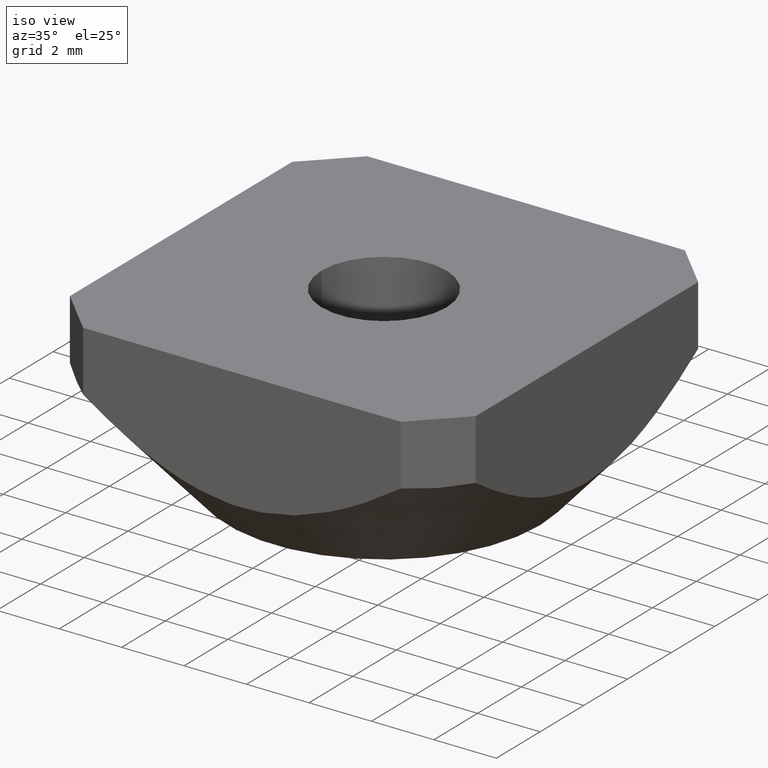
[diagram: clean part render]
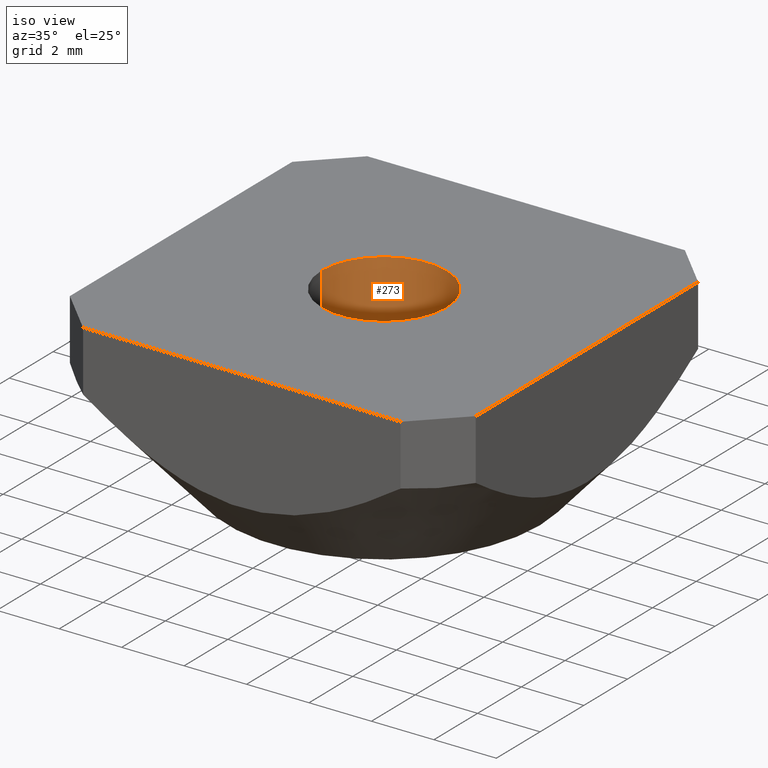
[diagram: same view with one face highlighted and labeled with its STEP entity id]
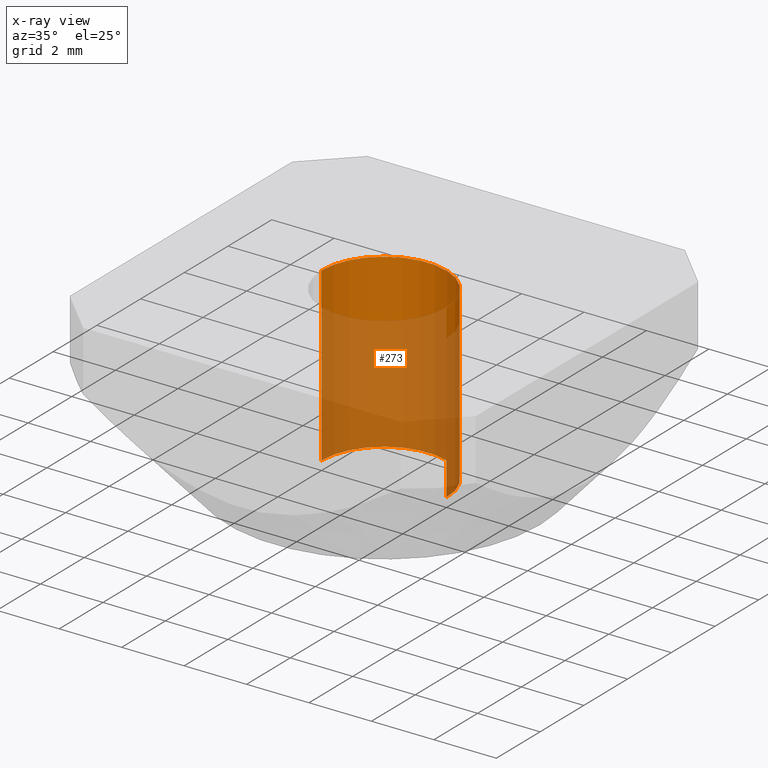
[diagram: x-ray of the same camera — body ghosted, the highlighted face saturated]
A machine part, iso view. The second image highlights one B-rep face of the part: STEP entity #273.
The next image is the same camera in x-ray: the body ghosted, the highlighted face saturated — about 71% of this face is hidden behind the body in this view.
In plain terms, the highlighted cylindrical surface (partial cylindrical patch) has radius 2 mm, axis along (0, 0, -1).
Its self-contained STEP definition (entity closure, byte-faithful):
#43 = DIRECTION ( 'NONE',  ( 0.0000000000000000000, 0.0000000000000000000, -1.000000000000000000 ) ) ;
#45 = AXIS2_PLACEMENT_3D ( 'NONE', #154, #290, #471 ) ;
#69 = VERTEX_POINT ( 'NONE', #449 ) ;
#116 = DIRECTION ( 'NONE',  ( -1.000000000000000000, 0.0000000000000000000, 0.0000000000000000000 ) ) ;
#133 = VECTOR ( 'NONE', #326, 1000.000000000000000 ) ;
#149 = DIRECTION ( 'NONE',  ( -1.000000000000000000, 0.0000000000000000000, 0.0000000000000000000 ) ) ;
#154 = CARTESIAN_POINT ( 'NONE',  ( 0.0000000000000000000, 0.0000000000000000000, -5.500000000000000000 ) ) ;
#158 = DIRECTION ( 'NONE',  ( 0.0000000000000000000, 0.0000000000000000000, -1.000000000000000000 ) ) ;
#171 = EDGE_CURVE ( 'NONE', #69, #395, #494, .T. ) ;
#205 = CIRCLE ( 'NONE', #427, 2.000000000000000000 ) ;
#211 = VECTOR ( 'NONE', #158, 1000.000000000000000 ) ;
#219 = EDGE_CURVE ( 'NONE', #503, #407, #355, .T. ) ;
#222 = EDGE_LOOP ( 'NONE', ( #310, #505, #392, #368 ) ) ;
#233 = CARTESIAN_POINT ( 'NONE',  ( -2.000000000000000000, 0.0000000000000000000, 0.0000000000000000000 ) ) ;
#248 = CARTESIAN_POINT ( 'NONE',  ( 0.0000000000000000000, 0.0000000000000000000, 0.0000000000000000000 ) ) ;
#261 = EDGE_CURVE ( 'NONE', #407, #395, #489, .T. ) ;
#273 = ADVANCED_FACE ( 'NONE', ( #455 ), #546, .F. ) ;
#282 = CARTESIAN_POINT ( 'NONE',  ( 0.0000000000000000000, 0.0000000000000000000, 0.0000000000000000000 ) ) ;
#290 = DIRECTION ( 'NONE',  ( -0.0000000000000000000, -0.0000000000000000000, 1.000000000000000000 ) ) ;
#310 = ORIENTED_EDGE ( 'NONE', *, *, #219, .F. ) ;
#326 = DIRECTION ( 'NONE',  ( 0.0000000000000000000, 0.0000000000000000000, -1.000000000000000000 ) ) ;
#329 = CARTESIAN_POINT ( 'NONE',  ( -2.000000000000000000, 0.0000000000000000000, -5.500000000000000000 ) ) ;
#355 = LINE ( 'NONE', #512, #211 ) ;
#368 = ORIENTED_EDGE ( 'NONE', *, *, #261, .F. ) ;
#380 = DIRECTION ( 'NONE',  ( 0.0000000000000000000, 0.0000000000000000000, -1.000000000000000000 ) ) ;
#392 = ORIENTED_EDGE ( 'NONE', *, *, #171, .T. ) ;
#395 = VERTEX_POINT ( 'NONE', #329 ) ;
#407 = VERTEX_POINT ( 'NONE', #466 ) ;
#408 = AXIS2_PLACEMENT_3D ( 'NONE', #282, #380, #149 ) ;
#427 = AXIS2_PLACEMENT_3D ( 'NONE', #248, #43, #116 ) ;
#449 = CARTESIAN_POINT ( 'NONE',  ( -2.000000000000000000, 0.0000000000000000000, 0.0000000000000000000 ) ) ;
#455 = FACE_OUTER_BOUND ( 'NONE', #222, .T. ) ;
#466 = CARTESIAN_POINT ( 'NONE',  ( 2.000000000000000000, 2.449293598294706414E-16, -5.500000000000000000 ) ) ;
#471 = DIRECTION ( 'NONE',  ( -1.000000000000000000, 0.0000000000000000000, 0.0000000000000000000 ) ) ;
#489 = CIRCLE ( 'NONE', #45, 2.000000000000000000 ) ;
#494 = LINE ( 'NONE', #233, #133 ) ;
#503 = VERTEX_POINT ( 'NONE', #524 ) ;
#505 = ORIENTED_EDGE ( 'NONE', *, *, #541, .F. ) ;
#512 = CARTESIAN_POINT ( 'NONE',  ( 2.000000000000000000, 2.449293598294706414E-16, 0.0000000000000000000 ) ) ;
#524 = CARTESIAN_POINT ( 'NONE',  ( 2.000000000000000000, 2.449293598294706414E-16, 0.0000000000000000000 ) ) ;
#541 = EDGE_CURVE ( 'NONE', #69, #503, #205, .T. ) ;
#546 = CYLINDRICAL_SURFACE ( 'NONE', #408, 2.000000000000000000 ) ;